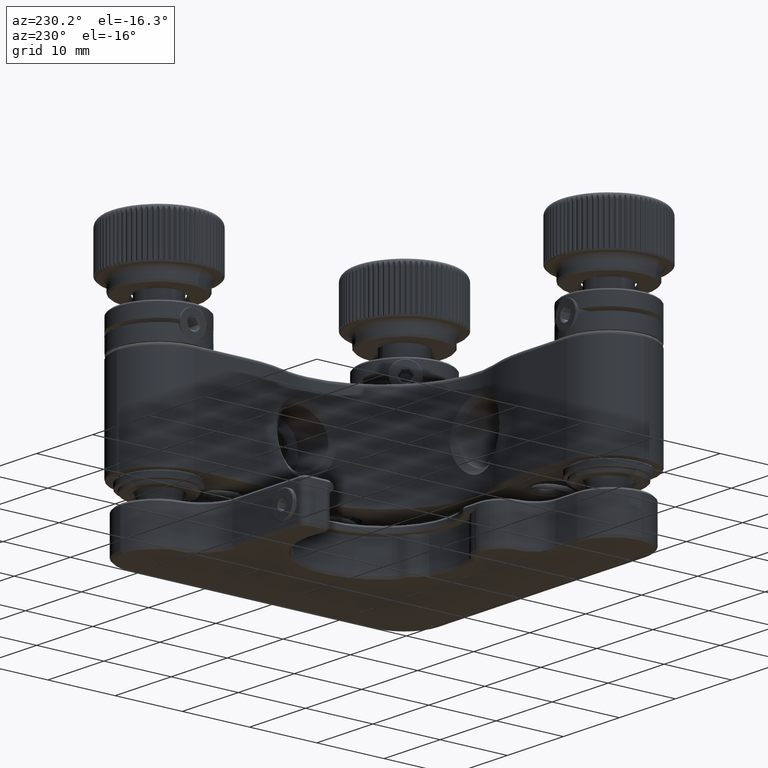
[diagram: clean part render]
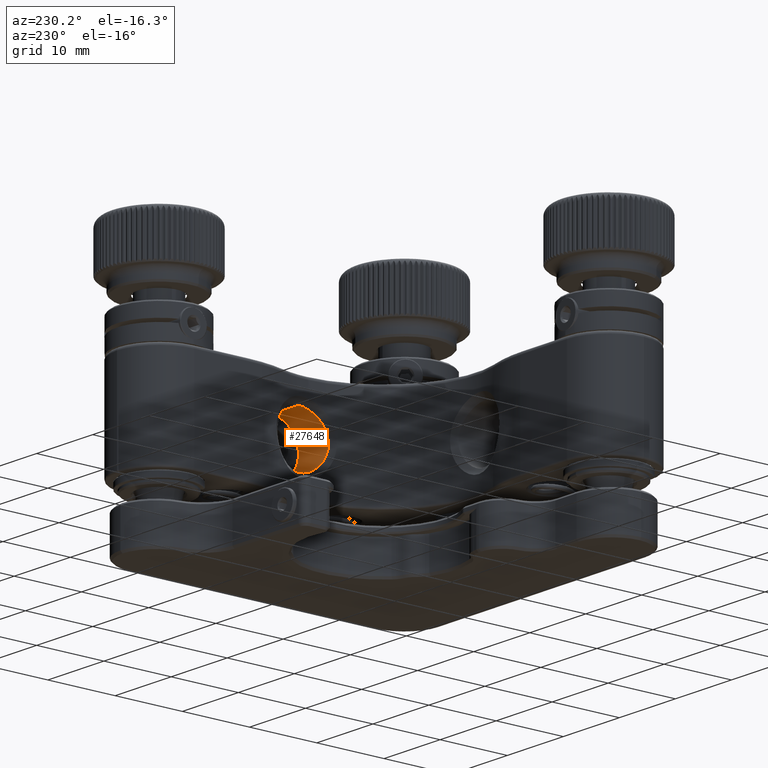
[diagram: same view with one face highlighted and labeled with its STEP entity id]
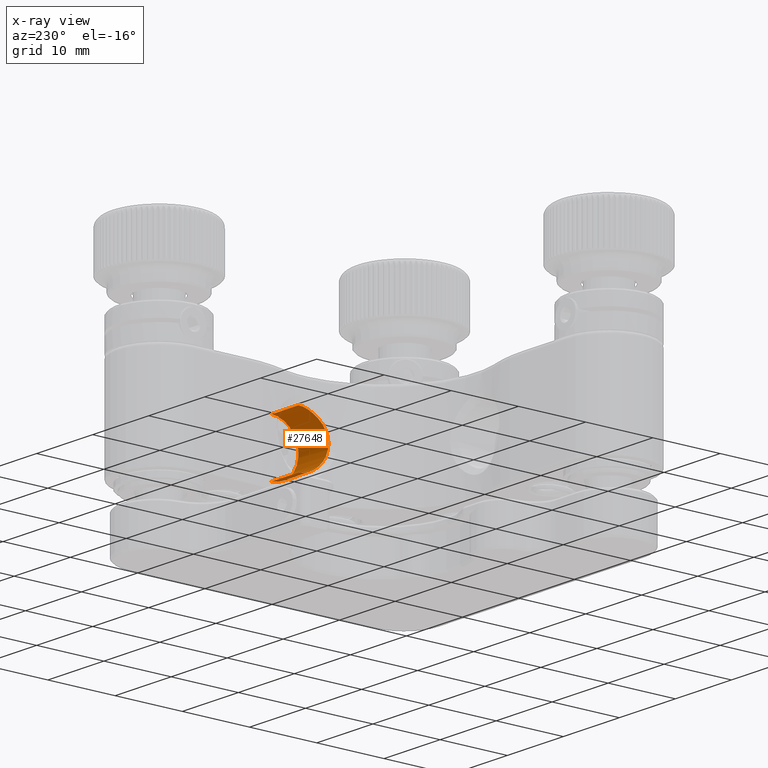
[diagram: x-ray of the same camera — body ghosted, the highlighted face saturated]
A machine part, auxiliary view. The second image highlights one B-rep face of the part: STEP entity #27648.
The next image is the same camera in x-ray: the body ghosted, the highlighted face saturated — about 1% of this face is hidden behind the body in this view.
In plain terms, the highlighted cylindrical surface (edge-blend (fillet) strip) has radius 4 mm, axis along (-1, -0, -0).
Its self-contained STEP definition (entity closure, byte-faithful):
#35 = CARTESIAN_POINT ( 'NONE',  ( 13.79165365530732323, -2.636501610289611719, 1.872198946007002984 ) ) ;
#145 = FACE_OUTER_BOUND ( 'NONE', #41601, .T. ) ;
#307 = CARTESIAN_POINT ( 'NONE',  ( 13.89433094834491200, -2.270243366537470830, 2.439174092964144780 ) ) ;
#566 = CARTESIAN_POINT ( 'NONE',  ( 13.91691447116427760, -2.182052598143446431, 2.550133265635640356 ) ) ;
#700 = CARTESIAN_POINT ( 'NONE',  ( 14.12402831619602495, -1.098674461848016648, -3.465536709003362859 ) ) ;
#848 = CARTESIAN_POINT ( 'NONE',  ( 14.03416260085567124, -1.651408421419893191, 3.080648380428087751 ) ) ;
#1141 = CARTESIAN_POINT ( 'NONE',  ( 14.17868321189170011, 0.9000000210219770702, 3.999999143625116105 ) ) ;
#2478 = EDGE_CURVE ( 'NONE', #40298, #2999, #45259, .T. ) ;
#2843 = CARTESIAN_POINT ( 'NONE',  ( 13.87366464055680737, -2.348858353269644095, -2.334860135550154592 ) ) ;
#2999 = VERTEX_POINT ( 'NONE', #35668 ) ;
#3101 = CARTESIAN_POINT ( 'NONE',  ( 13.80386136632231597, -2.595142745448402621, -1.945487081605530300 ) ) ;
#3367 = CARTESIAN_POINT ( 'NONE',  ( 13.98980749243546207, -1.868940267632678287, -2.886701639422608157 ) ) ;
#3655 = CARTESIAN_POINT ( 'NONE',  ( 13.94552918603588942, -2.064402490885332231, -2.685592207282288424 ) ) ;
#3939 = CARTESIAN_POINT ( 'NONE',  ( 13.65793836002335482, -3.046992797508236261, -0.6521446332492840670 ) ) ;
#4206 = CARTESIAN_POINT ( 'NONE',  ( 13.74569744953160644, -2.784175949874573064, 1.558195798500764395 ) ) ;
#4485 = CARTESIAN_POINT ( 'NONE',  ( 14.16071519773766951, -0.7806208956760567474, 3.629947993047816013 ) ) ;
#4756 = CARTESIAN_POINT ( 'NONE',  ( 13.76339021407573604, -2.728038209138120784, 1.684691344216211695 ) ) ;
#4890 = CARTESIAN_POINT ( 'NONE',  ( 14.20589727246868073, -0.009645800789831423735, -3.895764931402984743 ) ) ;
#5022 = CARTESIAN_POINT ( 'NONE',  ( 14.17154231719083768, -0.6640487976158799821, 3.681695415930709814 ) ) ;
#5157 = CARTESIAN_POINT ( 'NONE',  ( 14.07621803618556200, -1.420202718110022078, -3.260686156171111794 ) ) ;
#5308 = CARTESIAN_POINT ( 'NONE',  ( 13.95867292634981816, -2.008861720141101426, 2.746665564854706698 ) ) ;
#5430 = AXIS2_PLACEMENT_3D ( 'NONE', #38115, #55168, #54889 ) ;
#5697 = CARTESIAN_POINT ( 'NONE',  ( 19.00000000000001066, 0.9000000000000007994, 0.000000000000000000 ) ) ;
#5994 = CARTESIAN_POINT ( 'NONE',  ( 14.20270738552557610, -0.1388972789242732264, -3.863305880652945223 ) ) ;
#6025 = EDGE_CURVE ( 'NONE', #42566, #19166, #25366, .T. ) ;
#6971 = EDGE_CURVE ( 'NONE', #42566, #40298, #43737, .T. ) ;
#7018 = CARTESIAN_POINT ( 'NONE',  ( 13.66557884019935898, -3.025131152413608859, 0.7784419502516977118 ) ) ;
#7299 = CARTESIAN_POINT ( 'NONE',  ( 13.69583373213643718, -2.936425619059852998, -1.132610032632058727 ) ) ;
#7559 = CARTESIAN_POINT ( 'NONE',  ( 13.72525824510012349, -2.848075200176261923, -1.403573521025423654 ) ) ;
#7829 = CARTESIAN_POINT ( 'NONE',  ( 13.71095740793861850, -2.891314662616324416, 1.281143979504700381 ) ) ;
#8119 = CARTESIAN_POINT ( 'NONE',  ( 13.98239921927179807, -1.902990456945188091, -2.853665828762685042 ) ) ;
#8404 = CARTESIAN_POINT ( 'NONE',  ( 13.98954035286840636, -1.870177773229143359, 2.885514160540569417 ) ) ;
#8678 = CARTESIAN_POINT ( 'NONE',  ( 13.88477967958064418, -2.306686183577468352, 2.391123881324151768 ) ) ;
#8954 = CARTESIAN_POINT ( 'NONE',  ( 14.20060464783385790, -0.1990201372334201857, 3.846599503115234242 ) ) ;
#9230 = CARTESIAN_POINT ( 'NONE',  ( 13.99631437761249586, -1.838748753356292953, 2.915619272101393822 ) ) ;
#9363 = CARTESIAN_POINT ( 'NONE',  ( 14.11182235858766632, -1.186349719935933411, -3.412834609017432630 ) ) ;
#9502 = CARTESIAN_POINT ( 'NONE',  ( 13.84183046694830743, -2.463936455627928623, 2.164314032066863014 ) ) ;
#10069 = CARTESIAN_POINT ( 'NONE',  ( 14.20566581350520252, 0.3780055824782595497, 3.967955443490273737 ) ) ;
#10201 = CARTESIAN_POINT ( 'NONE',  ( 14.19233478673821836, -0.3852452577508639897, -3.790076827586422947 ) ) ;
#10238 = DIRECTION ( 'NONE',  ( -1.000000000000000000, -0.000000000000000000, -0.000000000000000000 ) ) ;
#11101 = AXIS2_PLACEMENT_3D ( 'NONE', #5697, #30545, #22719 ) ;
#11221 = CARTESIAN_POINT ( 'NONE',  ( 13.66560112045318931, -3.025068260350871174, -0.7787582493988354226 ) ) ;
#11484 = CARTESIAN_POINT ( 'NONE',  ( 13.84759766168559736, -2.443393909169258915, -2.195909003414417526 ) ) ;
#11764 = CARTESIAN_POINT ( 'NONE',  ( 13.89747060264410550, -2.258189651365076767, -2.454808386082083071 ) ) ;
#11765 = LINE ( 'NONE', #24587, #27707 ) ;
#12034 = CARTESIAN_POINT ( 'NONE',  ( 13.84972848709424298, -2.435759225762421654, -2.207470507690815875 ) ) ;
#12301 = CARTESIAN_POINT ( 'NONE',  ( 13.91753189614518504, -2.179579223597978732, -2.553120515221669606 ) ) ;
#12590 = CARTESIAN_POINT ( 'NONE',  ( 14.13907204887087588, -0.9824441869006792505, 3.531205008958783420 ) ) ;
#12869 = CARTESIAN_POINT ( 'NONE',  ( 13.84957376615983726, -2.436303639523938358, 2.206610267196392527 ) ) ;
#13137 = CARTESIAN_POINT ( 'NONE',  ( 14.19238671810861163, -0.3844760136271082596, 3.790357947220860169 ) ) ;
#13414 = CARTESIAN_POINT ( 'NONE',  ( 14.02997876537515154, -1.673061051589766812, 3.062582450503912757 ) ) ;
#13552 = CARTESIAN_POINT ( 'NONE',  ( 14.10027775025971053, -1.265427944412286676, -3.363304980779853626 ) ) ;
#13692 = CARTESIAN_POINT ( 'NONE',  ( 14.01993272734814688, -1.724246605605495697, 3.019096495764457710 ) ) ;
#13831 = CARTESIAN_POINT ( 'NONE',  ( 14.10589405703690424, -1.227440419334775212, -3.387362086672419004 ) ) ;
#13963 = CARTESIAN_POINT ( 'NONE',  ( 14.19620665029360040, 0.6386521229196626681, 3.993600613555836176 ) ) ;
#14108 = CARTESIAN_POINT ( 'NONE',  ( 14.05776233746131965, -1.527467596390688520, -3.182346307276559205 ) ) ;
#14391 = CARTESIAN_POINT ( 'NONE',  ( 14.17158625817891249, -0.6635329251396154815, -3.681913121722107274 ) ) ;
#15672 = CARTESIAN_POINT ( 'NONE',  ( 13.98029781797315607, -1.912539922678555548, -2.844260014832716621 ) ) ;
#15943 = CARTESIAN_POINT ( 'NONE',  ( 13.89250756439177614, -2.277233214639563741, -2.430059791645234224 ) ) ;
#16221 = CARTESIAN_POINT ( 'NONE',  ( 13.86105393783391548, -2.395013587297059043, -2.268553709496361037 ) ) ;
#16492 = CARTESIAN_POINT ( 'NONE',  ( 13.82206878142333117, -2.533204404355839046, -2.053345773787320638 ) ) ;
#16759 = CARTESIAN_POINT ( 'NONE',  ( 13.89320898209122213, -2.274544532289097809, 2.433571188699198640 ) ) ;
#17048 = CARTESIAN_POINT ( 'NONE',  ( 13.89344998990339697, -2.273621026333358053, 2.434779462265288519 ) ) ;
#17323 = CARTESIAN_POINT ( 'NONE',  ( 14.16880405259916920, -0.6949917838909338563, 3.668374840229631229 ) ) ;
#17579 = CARTESIAN_POINT ( 'NONE',  ( 13.94112640827776417, -2.082944536575868089, 2.665109389370294846 ) ) ;
#17716 = CARTESIAN_POINT ( 'NONE',  ( 14.10762447486394144, -1.215591912924494311, -3.394785130218466840 ) ) ;
#17873 = CARTESIAN_POINT ( 'NONE',  ( 14.20684706308279566, 0.05617380296352812719, 3.910535163050153695 ) ) ;
#18012 = CARTESIAN_POINT ( 'NONE',  ( 14.20683678550827977, 0.05507743971713301850, -3.910301982193985726 ) ) ;
#18283 = CARTESIAN_POINT ( 'NONE',  ( 14.20054038160780685, -0.2006681852720786363, -3.846123240202337534 ) ) ;
#19166 = VERTEX_POINT ( 'NONE', #38007 ) ;
#19865 = CARTESIAN_POINT ( 'NONE',  ( 13.99656600706708076, -1.837563369552454695, -2.916731153613627114 ) ) ;
#20116 = CARTESIAN_POINT ( 'NONE',  ( 13.64838487159829405, -3.074222876639047364, -0.4581662382062523520 ) ) ;
#20395 = CARTESIAN_POINT ( 'NONE',  ( 13.98540476287458389, -1.889236327045780817, -2.867089421849545960 ) ) ;
#20680 = CARTESIAN_POINT ( 'NONE',  ( 13.75003868277077324, -2.770509691910861605, -1.590135791030662604 ) ) ;
#20734 = VECTOR ( 'NONE', #10238, 1000.000000000000000 ) ;
#20955 = CARTESIAN_POINT ( 'NONE',  ( 13.65137205280961119, -3.065730180506992308, -0.5263353509633607041 ) ) ;
#21232 = CARTESIAN_POINT ( 'NONE',  ( 13.84595945062094735, -2.449232155591268167, 2.186944191029917217 ) ) ;
#21504 = CARTESIAN_POINT ( 'NONE',  ( 14.16350535232505869, -0.7520010049144418840, 3.643057155586639340 ) ) ;
#21784 = CARTESIAN_POINT ( 'NONE',  ( 13.81069700599240235, -2.572305067943405632, 1.986894478438687051 ) ) ;
#21912 = CARTESIAN_POINT ( 'NONE',  ( 14.15518323427230918, -0.8374058653310803013, -3.603948417440672625 ) ) ;
#22046 = CARTESIAN_POINT ( 'NONE',  ( 13.85958195559064698, -2.400393251015325191, 2.260801502975139154 ) ) ;
#22180 = CARTESIAN_POINT ( 'NONE',  ( 14.18445292265708524, -0.5090095376849491648, -3.746011642426393617 ) ) ;
#22340 = CARTESIAN_POINT ( 'NONE',  ( 14.02667861047377862, -1.689982534187713048, 3.048312358990421522 ) ) ;
#22719 = DIRECTION ( 'NONE',  ( 0.000000000000000000, 0.000000000000000000, 1.000000000000000000 ) ) ;
#24049 = CARTESIAN_POINT ( 'NONE',  ( 13.69255220622920177, -2.946173288240442112, 1.099120763698539838 ) ) ;
#24051 = DIRECTION ( 'NONE',  ( -1.000000000000000000, -0.000000000000000000, -0.000000000000000000 ) ) ;
#24327 = CARTESIAN_POINT ( 'NONE',  ( 13.91125622349299995, -2.204433255302287620, -2.522594781833398248 ) ) ;
#24585 = CARTESIAN_POINT ( 'NONE',  ( 13.69584634385673283, -2.936388663389285725, 1.132733120098277313 ) ) ;
#24587 = CARTESIAN_POINT ( 'NONE',  ( 12.00000000000000888, 0.9000000000000007994, 4.000000000000000000 ) ) ;
#24771 = ORIENTED_EDGE ( 'NONE', *, *, #6025, .F. ) ;
#24857 = CARTESIAN_POINT ( 'NONE',  ( 13.72520058098857731, -2.848249497060599822, 1.403086214521189090 ) ) ;
#25151 = CARTESIAN_POINT ( 'NONE',  ( 13.89151655343320613, -2.281029072463769847, -2.425092801414964860 ) ) ;
#25366 = CIRCLE ( 'NONE', #11101, 3.999999999999999112 ) ;
#25432 = CARTESIAN_POINT ( 'NONE',  ( 14.09634606590114458, -1.291298864046082739, 3.346517330743553842 ) ) ;
#25696 = CARTESIAN_POINT ( 'NONE',  ( 13.75866879621506733, -2.743136467053765681, 1.651885695158955780 ) ) ;
#25968 = CARTESIAN_POINT ( 'NONE',  ( 14.20276013069320342, -0.1371710259244009744, 3.863765824501996793 ) ) ;
#26233 = CARTESIAN_POINT ( 'NONE',  ( 13.89383330414682050, -2.272151235465230901, 2.436691078317100079 ) ) ;
#26369 = CARTESIAN_POINT ( 'NONE',  ( 14.09638859238109099, -1.291021824956608999, -3.346697893663170387 ) ) ;
#26510 = CARTESIAN_POINT ( 'NONE',  ( 13.89722631680714926, -2.259128119552671343, 2.453593622841472310 ) ) ;
#26937 = CARTESIAN_POINT ( 'NONE',  ( 14.02457852977801522, -1.700624693284506384, -3.039211591144831637 ) ) ;
#27149 = CARTESIAN_POINT ( 'NONE',  ( 14.17868331812532645, 0.9000000832457325517, -4.000000372621205003 ) ) ;
#27648 = ADVANCED_FACE ( 'NONE', ( #145 ), #38676, .F. ) ;
#27707 = VECTOR ( 'NONE', #24051, 1000.000000000000000 ) ;
#28223 = CARTESIAN_POINT ( 'NONE',  ( 13.64155022499321035, -3.093595231892656727, 0.2617602270481694804 ) ) ;
#28497 = CARTESIAN_POINT ( 'NONE',  ( 13.93291902732261889, -2.116975353306301155, -2.626522385421167893 ) ) ;
#28775 = CARTESIAN_POINT ( 'NONE',  ( 13.75879278564049635, -2.742740386554254783, -1.652760027497891970 ) ) ;
#29035 = CARTESIAN_POINT ( 'NONE',  ( 13.65792051202269519, -3.047041747016763225, 0.6518461599081831759 ) ) ;
#29315 = CARTESIAN_POINT ( 'NONE',  ( 13.77589106744457759, -2.687799065689918887, -1.769638349439517144 ) ) ;
#29607 = CARTESIAN_POINT ( 'NONE',  ( 13.98680648075028721, -1.882800215044534875, 2.873342971021907388 ) ) ;
#29882 = CARTESIAN_POINT ( 'NONE',  ( 13.96907966597435191, -1.963109405720202094, 2.793881473852946939 ) ) ;
#30159 = CARTESIAN_POINT ( 'NONE',  ( 14.10588099853599608, -1.227529140949684239, 3.387306564377397411 ) ) ;
#30447 = CARTESIAN_POINT ( 'NONE',  ( 14.07611470556219402, -1.420840764456255068, 3.260245612008992655 ) ) ;
#30545 = DIRECTION ( 'NONE',  ( -1.000000000000000000, -0.000000000000000000, -0.000000000000000000 ) ) ;
#30718 = CARTESIAN_POINT ( 'NONE',  ( 14.03152242056623855, -1.665106343560766700, 3.069252160209530178 ) ) ;
#30849 = CARTESIAN_POINT ( 'NONE',  ( 14.03175740850613451, -1.663931397099234211, -3.070273049376505359 ) ) ;
#31273 = CARTESIAN_POINT ( 'NONE',  ( 14.18870939322942704, 0.7704470988886013005, 4.000000000317363913 ) ) ;
#31409 = CARTESIAN_POINT ( 'NONE',  ( 14.00818193258354150, -1.782298740016918792, -2.967900119214777366 ) ) ;
#32433 = CARTESIAN_POINT ( 'NONE',  ( 13.89353499505397771, -2.273296293450942418, -2.435201159167875051 ) ) ;
#32692 = CARTESIAN_POINT ( 'NONE',  ( 13.94093592702712137, -2.083677106194219864, -2.664162941200463042 ) ) ;
#32968 = CARTESIAN_POINT ( 'NONE',  ( 13.84230173320962543, -2.462259742329873546, -2.166912229014928748 ) ) ;
#33250 = CARTESIAN_POINT ( 'NONE',  ( 13.95894256719929771, -2.007690945894358148, -2.747897705018271353 ) ) ;
#33517 = CARTESIAN_POINT ( 'NONE',  ( 13.76339522089762823, -2.728029562337122460, -1.684749833269328700 ) ) ;
#33796 = CARTESIAN_POINT ( 'NONE',  ( 14.10024715108527182, -1.265630796768525190, 3.363175178123333442 ) ) ;
#34090 = CARTESIAN_POINT ( 'NONE',  ( 13.82587288767692613, -2.519986056210470338, 2.074815272176020908 ) ) ;
#34350 = CARTESIAN_POINT ( 'NONE',  ( 14.18447452505466799, -0.5088204133968033949, 3.746104840355990895 ) ) ;
#34521 = EDGE_CURVE ( 'NONE', #19166, #2999, #11765, .T. ) ;
#34623 = CARTESIAN_POINT ( 'NONE',  ( 14.00796172219108549, -1.783367048928775178, 2.966937286943179597 ) ) ;
#34792 = CARTESIAN_POINT ( 'NONE',  ( 12.00000000000000888, 0.9000000000000013545, -4.000000000000000000 ) ) ;
#34902 = CARTESIAN_POINT ( 'NONE',  ( 14.15192232062448952, -0.8667769885707601318, 3.589224871962789276 ) ) ;
#35046 = CARTESIAN_POINT ( 'NONE',  ( 14.03439051590776288, -1.650259188849335423, -3.081637458932886986 ) ) ;
#35314 = CARTESIAN_POINT ( 'NONE',  ( 14.16354750112184391, -0.7515659481134175923, -3.643254319115280193 ) ) ;
#35451 = CARTESIAN_POINT ( 'NONE',  ( 14.20767799253677666, 0.2497525931693316825, 3.948985940584861964 ) ) ;
#35596 = CARTESIAN_POINT ( 'NONE',  ( 14.16884172006676046, -0.6945726562779200863, -3.668556958610660779 ) ) ;
#35668 = CARTESIAN_POINT ( 'NONE',  ( 14.17868321189170011, 0.9000000210219770702, 3.999999143625116105 ) ) ;
#36898 = CARTESIAN_POINT ( 'NONE',  ( 13.68652583636173325, -2.963989920659023003, 1.034745045609317460 ) ) ;
#37162 = CARTESIAN_POINT ( 'NONE',  ( 13.64838948243754047, -3.074212245006282540, 0.4582219492856507981 ) ) ;
#37445 = CARTESIAN_POINT ( 'NONE',  ( 13.96930228366274562, -1.962122507809859862, -2.794886102952799156 ) ) ;
#37732 = CARTESIAN_POINT ( 'NONE',  ( 13.92883592903883816, -2.133702986027858017, -2.607144862197184221 ) ) ;
#38001 = CARTESIAN_POINT ( 'NONE',  ( 13.63924322073070350, -3.100030321587351256, -0.1296102961298712664 ) ) ;
#38007 = CARTESIAN_POINT ( 'NONE',  ( 19.00000000000001066, 0.9000000000000007994, 3.999999999999999112 ) ) ;
#38115 = CARTESIAN_POINT ( 'NONE',  ( 12.00000000000000888, 0.9000000000000007994, 0.000000000000000000 ) ) ;
#38282 = CARTESIAN_POINT ( 'NONE',  ( 13.88832982341076772, -2.293222068929886337, 2.409102889159361993 ) ) ;
#38562 = CARTESIAN_POINT ( 'NONE',  ( 13.84738214895718045, -2.444149710086042759, 2.194701246850845777 ) ) ;
#38676 = CYLINDRICAL_SURFACE ( 'NONE', #5430, 4.000000000000000000 ) ;
#38832 = CARTESIAN_POINT ( 'NONE',  ( 13.90084548348668569, -2.245210850654582035, 2.471558709172819057 ) ) ;
#38954 = CARTESIAN_POINT ( 'NONE',  ( 14.13912809736226883, -0.9819803811245986225, -3.531452186969822549 ) ) ;
#39103 = CARTESIAN_POINT ( 'NONE',  ( 14.20591888601101616, -0.008341414104118736322, 3.896065445937734850 ) ) ;
#39242 = CARTESIAN_POINT ( 'NONE',  ( 14.11388605558017950, -1.171732083523027379, -3.421727113895796979 ) ) ;
#39399 = CARTESIAN_POINT ( 'NONE',  ( 13.83368417068685297, -2.492783555354660230, 2.119249439296899684 ) ) ;
#40166 = CARTESIAN_POINT ( 'NONE',  ( 19.00000000000001066, 0.9000000000000013545, -3.999999999999999112 ) ) ;
#40298 = VERTEX_POINT ( 'NONE', #27149 ) ;
#41104 = CARTESIAN_POINT ( 'NONE',  ( 13.79896604532747872, -2.611584421687143109, -1.915695048912433585 ) ) ;
#41119 = ORIENTED_EDGE ( 'NONE', *, *, #2478, .T. ) ;
#41371 = CARTESIAN_POINT ( 'NONE',  ( 13.98707966876856190, -1.881542884706545626, -2.874560095266975424 ) ) ;
#41601 = EDGE_LOOP ( 'NONE', ( #24771, #43469, #41119, #48616 ) ) ;
#41628 = CARTESIAN_POINT ( 'NONE',  ( 13.67792070403071669, -2.989308617345736607, -0.9385908968341902803 ) ) ;
#41909 = CARTESIAN_POINT ( 'NONE',  ( 13.89289490510772040, -2.275748902515214223, -2.431999259735321939 ) ) ;
#42193 = CARTESIAN_POINT ( 'NONE',  ( 13.69257025069243383, -2.946118031907648316, -1.099313524507051332 ) ) ;
#42461 = CARTESIAN_POINT ( 'NONE',  ( 13.91068956066525608, -2.206673841304897632, 2.519827651192677376 ) ) ;
#42566 = VERTEX_POINT ( 'NONE', #40166 ) ;
#42742 = CARTESIAN_POINT ( 'NONE',  ( 13.93229575395925401, -2.119541814916098499, 2.623572639278493490 ) ) ;
#43019 = CARTESIAN_POINT ( 'NONE',  ( 13.74993146835174862, -2.770849360680171625, 1.589350382590875022 ) ) ;
#43290 = CARTESIAN_POINT ( 'NONE',  ( 13.98527850168017750, -1.889815128766013874, 2.866526315638901590 ) ) ;
#43418 = CARTESIAN_POINT ( 'NONE',  ( 14.20825719854659219, 0.3787291331063590283, -3.974665807401999817 ) ) ;
#43469 = ORIENTED_EDGE ( 'NONE', *, *, #6971, .T. ) ;
#43564 = CARTESIAN_POINT ( 'NONE',  ( 14.05644987225194775, -1.535082829756158729, 3.176767312163488732 ) ) ;
#43737 = LINE ( 'NONE', #34792, #20734 ) ;
#43987 = CARTESIAN_POINT ( 'NONE',  ( 14.01891881678729135, -1.729245849420236514, -3.014675442121940385 ) ) ;
#44252 = CARTESIAN_POINT ( 'NONE',  ( 14.17868331812532645, 0.9000000832457325517, -4.000000372621205003 ) ) ;
#45259 = B_SPLINE_CURVE_WITH_KNOTS ( 'NONE', 3,
 ( #44252, #48471, #43418, #18012, #4890, #5994, #18283, #10201, #22180, #14391, #35596, #35314, #21912, #38954, #700, #39242, #9363, #17716, #13831, #13552, #26369, #5157, #14108, #35046, #30849, #48181, #52662, #26937, #43987, #31409, #19865, #3367, #41371, #20395, #8119, #15672, #37445, #33250, #3655, #54782, #32692, #54223, #28497, #37732, #12301, #24327, #53955, #11764, #49757, #32433, #41909, #15943, #25151, #54502, #2843, #16221, #12034, #11484, #32968, #50318, #16492, #49493, #3101, #41104, #50035, #29315, #33517, #28775, #20680, #46386, #7559, #50581, #7299, #42193, #46102, #41628, #11221, #3939, #20955, #20116, #45564, #38001, #55052, #28223, #37162, #45291, #29035, #7018, #45840, #36898, #24049, #24585, #7829, #24857, #4206, #43019, #25696, #4756, #47766, #35, #21784, #34090, #39399, #9502, #21232, #38562, #12869, #22046, #51979, #8678, #38282, #51418, #17048, #16759, #26233, #307, #26510, #38832, #42461, #566, #51699, #42742, #17579, #51156, #5308, #29882, #46944, #46675, #43290, #29607, #8404, #9230, #34623, #13692, #22340, #13414, #30718, #848, #43564, #30447, #25432, #33796, #30159, #50867, #47221, #47498, #12590, #34902, #4485, #21504, #17323, #5022, #34350, #13137, #8954, #25968, #39103, #17873, #35451, #10069, #13963, #31273, #1141 ),
 .UNSPECIFIED., .F., .F.,
 ( 4, 2, 2, 2, 2, 2, 1, 1, 2, 2, 2, 2, 2, 2, 2, 1, 1, 1, 2, 2, 2, 2, 2, 2, 2, 2, 2, 1, 2, 2, 1, 2, 2, 1, 1, 2, 2, 2, 2, 2, 2, 2, 1, 1, 2, 2, 2, 2, 2, 1, 1, 2, 2, 2, 2, 2, 1, 2, 1, 2, 2, 1, 2, 1, 2, 2, 2, 2, 2, 2, 2, 2, 2, 2, 1, 1, 1, 2, 2, 1, 2, 2, 2, 1, 1, 2, 2, 2, 2, 2, 2, 2, 4 ),
 ( 0.1618159159275282533, 0.2040784530909637018, 0.2146440873818225570, 0.2252097216726813844, 0.2463409902543991226, 0.2516238073998285918, 0.2569066245452580333, 0.2674722588361169162, 0.2780378931269758547, 0.2806793016996905754, 0.2833207102724052961, 0.2886035274178346821, 0.3097347959995525590, 0.3123762045722673353, 0.3136969088586246679, 0.3150176131449820560, 0.3203004302904115530, 0.3255832474358409945, 0.3269039517221983826, 0.3282246560085557707, 0.3308660645812705470, 0.3414316988721296520, 0.3427524031584870401, 0.3440731074448444282, 0.3467145160175592045, 0.3519973331629886459, 0.3572801503084181984, 0.3586008545947755310, 0.3592612067379541974, 0.3599215588811329192, 0.3625629674538476399, 0.3731286017447068559, 0.3757700103174217432, 0.3784114188901365194, 0.3836942360355661830, 0.3889770531809958465, 0.3942598703264255100, 0.4048255046172848370, 0.4101083217627144450, 0.4153911389081441086, 0.4365224074898627071, 0.4418052246352923706, 0.4470880417807219787, 0.4576536760715813057, 0.4682193103624406327, 0.4787849446532999043, 0.4999162132350185583, 0.5210474818167372124, 0.5316131161075965395, 0.5421787503984557555, 0.5527443846893150825, 0.5580272018347447460, 0.5633100189801744095, 0.5844412875618931746, 0.5897241047073229492, 0.5950069218527527237, 0.6055725561436121618, 0.6161381904344715998, 0.6214210075799013744, 0.6240624161526162617, 0.6253831204389734832, 0.6267038247253308159, 0.6372694590161902539, 0.6399108675889051412, 0.6405712197320838630, 0.6412315718752625848, 0.6425522761616198064, 0.6478350933070495810, 0.6531179104524793555, 0.6557593190251942428, 0.6584007275979090190, 0.6689663618887682350, 0.6716077704614829003, 0.6729284747478403439, 0.6742491790341977875, 0.6795319961796275621, 0.6848148133250573366, 0.6874562218977722239, 0.6887769261841296675, 0.6900976304704871112, 0.7112288990522059873, 0.7165117161976355398, 0.7191531247703504270, 0.7217945333430653143, 0.7323601676339248634, 0.7429258019247841904, 0.7482086190702139650, 0.7534914362156437395, 0.7746227047973626156, 0.7851883390882219427, 0.7957539733790814918, 0.8168852419608003679, 0.8380165105425192440 ),
 .UNSPECIFIED. ) ;
#45291 = CARTESIAN_POINT ( 'NONE',  ( 13.65136078673561038, -3.065763832253840082, 0.5260790773900115846 ) ) ;
#45564 = CARTESIAN_POINT ( 'NONE',  ( 13.64152455165038980, -3.093665293630443625, -0.2609456314723887504 ) ) ;
#45840 = CARTESIAN_POINT ( 'NONE',  ( 13.67789825764410594, -2.989376737226546066, 0.9383120140155662980 ) ) ;
#46102 = CARTESIAN_POINT ( 'NONE',  ( 13.68654596404533486, -2.963928004410602668, -1.034975611915941895 ) ) ;
#46386 = CARTESIAN_POINT ( 'NONE',  ( 13.74579634687577645, -2.783864206980676492, -1.558933898685374686 ) ) ;
#46675 = CARTESIAN_POINT ( 'NONE',  ( 13.98225315696249638, -1.903654908106755084, 2.853013396396376411 ) ) ;
#46944 = CARTESIAN_POINT ( 'NONE',  ( 13.98013879574609497, -1.913259665567274226, 2.843548509615000164 ) ) ;
#47221 = CARTESIAN_POINT ( 'NONE',  ( 14.11176152087803715, -1.186778651616476665, 3.412572339331977567 ) ) ;
#47498 = CARTESIAN_POINT ( 'NONE',  ( 14.12208101304201335, -1.113707862853571484, 3.457036871320914972 ) ) ;
#47766 = CARTESIAN_POINT ( 'NONE',  ( 13.77499262107744293, -2.690710028219650329, 1.763571995189178399 ) ) ;
#48181 = CARTESIAN_POINT ( 'NONE',  ( 14.02775338989350296, -1.684475837247233265, -3.052960014211608009 ) ) ;
#48471 = CARTESIAN_POINT ( 'NONE',  ( 14.19889328126354400, 0.6387248023588870671, -4.000000000002682299 ) ) ;
#48616 = ORIENTED_EDGE ( 'NONE', *, *, #34521, .F. ) ;
#49493 = CARTESIAN_POINT ( 'NONE',  ( 13.81279972393932809, -2.564864558567638397, -1.998913801677422608 ) ) ;
#49757 = CARTESIAN_POINT ( 'NONE',  ( 13.89435232161731015, -2.270162788000612331, -2.439279253790801683 ) ) ;
#50035 = CARTESIAN_POINT ( 'NONE',  ( 13.78478377355204110, -2.658774516653266140, -1.827450306813588998 ) ) ;
#50318 = CARTESIAN_POINT ( 'NONE',  ( 13.83448185294578892, -2.489958235008967513, -2.123722405325211060 ) ) ;
#50581 = CARTESIAN_POINT ( 'NONE',  ( 13.71098321231745309, -2.891243197376256457, -1.281384908569418002 ) ) ;
#50867 = CARTESIAN_POINT ( 'NONE',  ( 14.10756332178728023, -1.216013124113313859, 3.394522583603800658 ) ) ;
#51156 = CARTESIAN_POINT ( 'NONE',  ( 13.94371520706021705, -2.072063597147344893, 2.677160994227912649 ) ) ;
#51418 = CARTESIAN_POINT ( 'NONE',  ( 13.89198129503174250, -2.279250569568729290, 2.427423997687868429 ) ) ;
#51699 = CARTESIAN_POINT ( 'NONE',  ( 13.92820614477743213, -2.136277372426475196, 2.604146057779219259 ) ) ;
#51979 = CARTESIAN_POINT ( 'NONE',  ( 13.87090335319086165, -2.358974101123660461, 2.320354055046373709 ) ) ;
#52662 = CARTESIAN_POINT ( 'NONE',  ( 14.02681799716005173, -1.689245940913397082, -3.048911502246943961 ) ) ;
#53955 = CARTESIAN_POINT ( 'NONE',  ( 13.90122557674246195, -2.243737750738093339, -2.473439553444565231 ) ) ;
#54223 = CARTESIAN_POINT ( 'NONE',  ( 13.93951630572713185, -2.089606367181869206, -2.657525879497633081 ) ) ;
#54502 = CARTESIAN_POINT ( 'NONE',  ( 13.88788190825876789, -2.294917877604292666, -2.406831244752084764 ) ) ;
#54782 = CARTESIAN_POINT ( 'NONE',  ( 13.94401438396021042, -2.070778929987207473, -2.678537996825411049 ) ) ;
#54889 = DIRECTION ( 'NONE',  ( 0.000000000000000000, 0.000000000000000000, 1.000000000000000000 ) ) ;
#55052 = CARTESIAN_POINT ( 'NONE',  ( 13.63926499031581052, -3.099969461059416176, 0.1314751424153135229 ) ) ;
#55168 = DIRECTION ( 'NONE',  ( -1.000000000000000000, -0.000000000000000000, -0.000000000000000000 ) ) ;